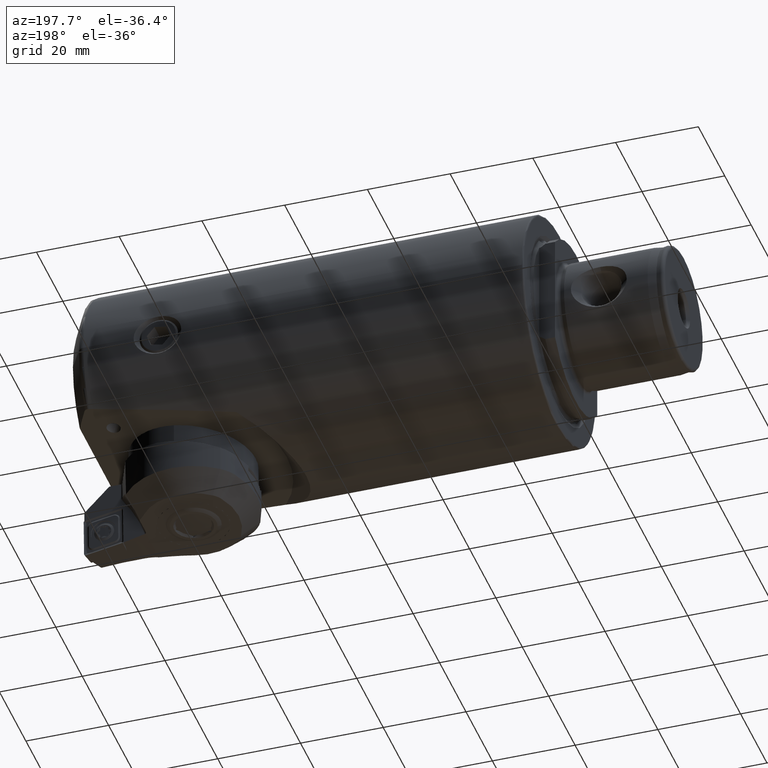
[diagram: clean part render]
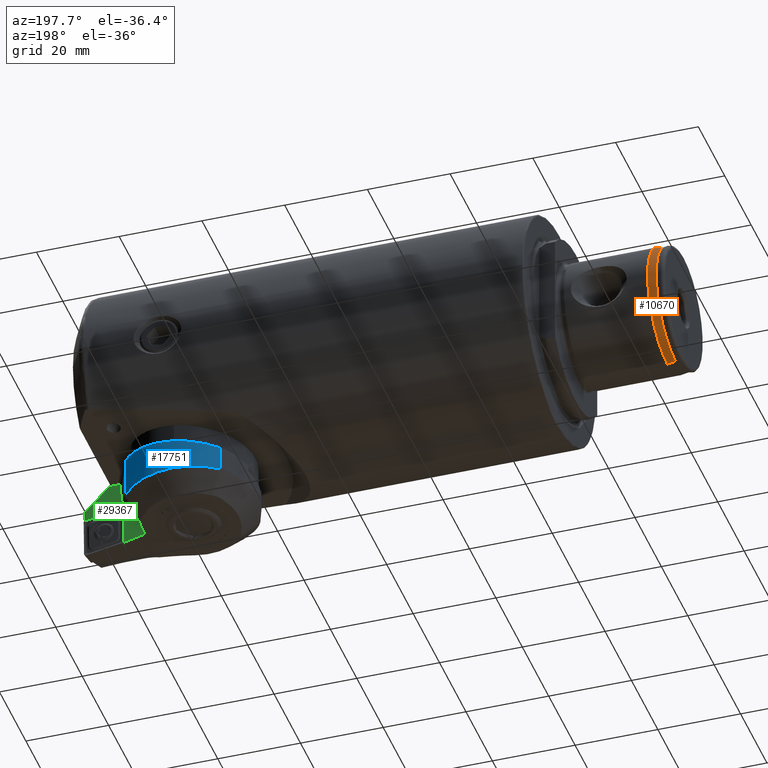
[diagram: same view with three faces highlighted in distinct colors, each labeled with its STEP entity id]
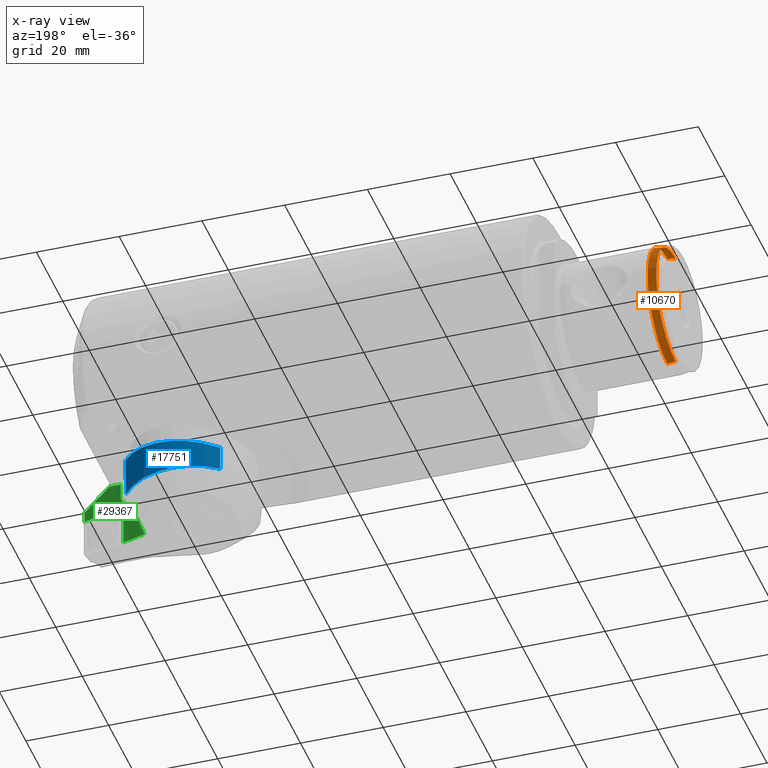
[diagram: x-ray of the same camera — body ghosted, the three highlighted faces saturated]
A machine part, auxiliary view with three faces highlighted in distinct colors.
The next image is the same camera in x-ray (body ghosted, the three faces saturated) — at least one of them is partly hidden behind the body in this view.
Their STEP definitions:

[orange] entity #10670 — the highlighted conical surface has half-angle 8 deg.
#79 = VERTEX_POINT ( 'NONE', #35533 ) ;
#703 = CARTESIAN_POINT ( 'NONE',  ( -25.99999999999999600, 0.0000000000000000000, 0.0000000000000000000 ) ) ;
#3712 = DIRECTION ( 'NONE',  ( 0.0000000000000000000, 0.0000000000000000000, 1.000000000000000000 ) ) ;
#4189 = EDGE_LOOP ( 'NONE', ( #38012, #33722, #29111, #12878 ) ) ;
#6235 = CARTESIAN_POINT ( 'NONE',  ( -27.99460346455847000, 1.802640503374977600E-015, -14.71967676419067000 ) ) ;
#6354 = CIRCLE ( 'NONE', #38932, 14.71967676419067000 ) ;
#6772 = VECTOR ( 'NONE', #36756, 1000.000000000000000 ) ;
#7976 = CARTESIAN_POINT ( 'NONE',  ( -25.99999999999999600, 1.836970198721029600E-015, 14.99999999999999800 ) ) ;
#8649 = LINE ( 'NONE', #18745, #6772 ) ;
#9015 = EDGE_CURVE ( 'NONE', #38226, #25006, #6354, .T. ) ;
#9034 = LINE ( 'NONE', #7976, #32050 ) ;
#10670 = ADVANCED_FACE ( 'NONE', ( #33992 ), #33028, .T. ) ;
#11713 = DIRECTION ( 'NONE',  ( 1.000000000000000000, 0.0000000000000000000, 0.0000000000000000000 ) ) ;
#12878 = ORIENTED_EDGE ( 'NONE', *, *, #18331, .F. ) ;
#14290 = CARTESIAN_POINT ( 'NONE',  ( -27.99460346455847000, 0.0000000000000000000, 14.71967676419067000 ) ) ;
#14888 = AXIS2_PLACEMENT_3D ( 'NONE', #703, #21668, #3712 ) ;
#14908 = DIRECTION ( 'NONE',  ( -1.000000000000000000, -0.0000000000000000000, -0.0000000000000000000 ) ) ;
#17068 = CIRCLE ( 'NONE', #14888, 14.99999999999999800 ) ;
#18331 = EDGE_CURVE ( 'NONE', #25006, #79, #8649, .T. ) ;
#18745 = CARTESIAN_POINT ( 'NONE',  ( -25.99999999999999600, 0.0000000000000000000, -14.99999999999999800 ) ) ;
#21553 = EDGE_CURVE ( 'NONE', #38226, #28501, #9034, .T. ) ;
#21668 = DIRECTION ( 'NONE',  ( -1.000000000000000000, -0.0000000000000000000, -0.0000000000000000000 ) ) ;
#22334 = AXIS2_PLACEMENT_3D ( 'NONE', #32713, #11713, #38668 ) ;
#25006 = VERTEX_POINT ( 'NONE', #6235 ) ;
#28501 = VERTEX_POINT ( 'NONE', #33452 ) ;
#29111 = ORIENTED_EDGE ( 'NONE', *, *, #32621, .T. ) ;
#32050 = VECTOR ( 'NONE', #38077, 1000.000000000000000 ) ;
#32621 = EDGE_CURVE ( 'NONE', #28501, #79, #17068, .T. ) ;
#32713 = CARTESIAN_POINT ( 'NONE',  ( -25.99999999999999600, 0.0000000000000000000, 0.0000000000000000000 ) ) ;
#32878 = CARTESIAN_POINT ( 'NONE',  ( -27.99460346455847000, 0.0000000000000000000, 0.0000000000000000000 ) ) ;
#33028 = CONICAL_SURFACE ( 'NONE', #22334, 14.99999999999999800, 0.1396263401595453600 ) ;
#33452 = CARTESIAN_POINT ( 'NONE',  ( -25.99999999999999600, 1.836970198721029600E-015, 14.99999999999999800 ) ) ;
#33722 = ORIENTED_EDGE ( 'NONE', *, *, #21553, .T. ) ;
#33992 = FACE_OUTER_BOUND ( 'NONE', #4189, .T. ) ;
#35533 = CARTESIAN_POINT ( 'NONE',  ( -25.99999999999999600, 0.0000000000000000000, -14.99999999999999800 ) ) ;
#35894 = DIRECTION ( 'NONE',  ( 0.0000000000000000000, 0.0000000000000000000, 1.000000000000000000 ) ) ;
#36756 = DIRECTION ( 'NONE',  ( 0.9902680687415704700, 0.0000000000000000000, -0.1391731009600644900 ) ) ;
#38012 = ORIENTED_EDGE ( 'NONE', *, *, #9015, .F. ) ;
#38077 = DIRECTION ( 'NONE',  ( 0.9902680687415704700, 1.704378926181544300E-017, 0.1391731009600644900 ) ) ;
#38226 = VERTEX_POINT ( 'NONE', #14290 ) ;
#38668 = DIRECTION ( 'NONE',  ( 0.0000000000000000000, 0.0000000000000000000, -1.000000000000000000 ) ) ;
#38932 = AXIS2_PLACEMENT_3D ( 'NONE', #32878, #14908, #35894 ) ;

[blue] entity #17751 — the highlighted cylindrical surface (partial cylindrical patch) has radius 16.55 mm, axis along (0, -0, 1).
#211 = EDGE_CURVE ( 'NONE', #36572, #23000, #31030, .T. ) ;
#745 = VERTEX_POINT ( 'NONE', #20362 ) ;
#1736 = EDGE_CURVE ( 'NONE', #13468, #23000, #11033, .T. ) ;
#3558 = CARTESIAN_POINT ( 'NONE',  ( 0.5601897321018435300, -10.48760062456626800, 12.80284082302039500 ) ) ;
#6127 = CARTESIAN_POINT ( 'NONE',  ( -5.500000000000005300, 13.16909711877788100, 10.02384063501591500 ) ) ;
#8241 = VECTOR ( 'NONE', #26943, 1000.000000000000000 ) ;
#11030 = CYLINDRICAL_SURFACE ( 'NONE', #14482, 16.55000000000000800 ) ;
#11033 = CIRCLE ( 'NONE', #34454, 16.55000000000000800 ) ;
#13468 = VERTEX_POINT ( 'NONE', #23189 ) ;
#14482 = AXIS2_PLACEMENT_3D ( 'NONE', #32825, #23886, #38901 ) ;
#14600 = ORIENTED_EDGE ( 'NONE', *, *, #211, .T. ) ;
#15623 = CARTESIAN_POINT ( 'NONE',  ( 4.354940207699606000, 13.47151093855360100, 9.613578575766222700 ) ) ;
#15951 = ORIENTED_EDGE ( 'NONE', *, *, #34420, .T. ) ;
#17127 = EDGE_CURVE ( 'NONE', #13468, #745, #24167, .T. ) ;
#17529 = CARTESIAN_POINT ( 'NONE',  ( -5.500000000000001800, 6.925341376751159600E-015, 0.0000000000000000000 ) ) ;
#17751 = ADVANCED_FACE ( 'NONE', ( #34993 ), #11030, .T. ) ;
#18026 = CARTESIAN_POINT ( 'NONE',  ( -13.00000000000000500, -10.48760062456626600, 12.80284082302039500 ) ) ;
#20362 = CARTESIAN_POINT ( 'NONE',  ( 0.5601897321018435300, -10.48760062456626800, 12.80284082302039500 ) ) ;
#20538 = DIRECTION ( 'NONE',  ( 1.048171284578130600E-016, -1.000000000000000000, 5.863556876683341500E-020 ) ) ;
#23000 = VERTEX_POINT ( 'NONE', #26164 ) ;
#23189 = CARTESIAN_POINT ( 'NONE',  ( -5.500000000000001800, -10.48760062456626800, 12.80284082302039800 ) ) ;
#23886 = DIRECTION ( 'NONE',  ( 1.000000000000000000, 1.061165053108318500E-017, -6.938893903908937100E-018 ) ) ;
#24167 = LINE ( 'NONE', #18026, #8241 ) ;
#25139 = CARTESIAN_POINT ( 'NONE',  ( 4.354940207699606000, 13.47151093855360100, 9.613578575766222700 ) ) ;
#25281 = CARTESIAN_POINT ( 'NONE',  ( -2.020258785337123400, 13.27200365306364000, 9.888644337158590100 ) ) ;
#26164 = CARTESIAN_POINT ( 'NONE',  ( -5.500000000000005300, 13.16909711877788100, 10.02384063501591500 ) ) ;
#26257 = EDGE_LOOP ( 'NONE', ( #15951, #14600, #27421, #26520 ) ) ;
#26520 = ORIENTED_EDGE ( 'NONE', *, *, #17127, .T. ) ;
#26943 = DIRECTION ( 'NONE',  ( 1.000000000000000000, 1.061165053108318500E-017, -6.938893903908937100E-018 ) ) ;
#27421 = ORIENTED_EDGE ( 'NONE', *, *, #1736, .F. ) ;
#27550 = CARTESIAN_POINT ( 'NONE',  ( 1.811643625694936400, -2.586231708346604200, 19.27534194415238000 ) ) ;
#28759 = CARTESIAN_POINT ( 'NONE',  ( 1.264980942679530400, 13.37281622767999200, 9.751879507789865900 ) ) ;
#31030 =( BOUNDED_CURVE ( )  B_SPLINE_CURVE ( 3, ( #25139, #28759, #25281, #6127 ),
 .UNSPECIFIED., .F., .F. ) 
 B_SPLINE_CURVE_WITH_KNOTS ( ( 4, 4 ),
 ( 0.2385590659942009600, 0.2693563834518322200 ),
 .UNSPECIFIED. ) 
 CURVE ( )  GEOMETRIC_REPRESENTATION_ITEM ( )  RATIONAL_B_SPLINE_CURVE ( ( 1.000000000000000000, 0.9999209619982518700, 0.9999209619982518700, 1.000000000000000000 ) ) 
 REPRESENTATION_ITEM ( '' )  );
#32825 = CARTESIAN_POINT ( 'NONE',  ( -13.00000000000000500, 6.925341376751159600E-015, 0.0000000000000000000 ) ) ;
#32943 = CARTESIAN_POINT ( 'NONE',  ( 4.354940207699606000, 13.47151093855360100, 9.613578575766222700 ) ) ;
#33590 = CARTESIAN_POINT ( 'NONE',  ( 3.415230770839784700, 7.538419058225562400, 17.92762225215154400 ) ) ;
#34420 = EDGE_CURVE ( 'NONE', #745, #36572, #35121, .T. ) ;
#34454 = AXIS2_PLACEMENT_3D ( 'NONE', #17529, #38568, #20538 ) ;
#34993 = FACE_OUTER_BOUND ( 'NONE', #26257, .T. ) ;
#35121 =( BOUNDED_CURVE ( )  B_SPLINE_CURVE ( 3, ( #3558, #27550, #33590, #15623 ),
 .UNSPECIFIED., .F., .T. ) 
 B_SPLINE_CURVE_WITH_KNOTS ( ( 4, 4 ),
 ( 4.026072616107711600, 5.663374855616608800 ),
 .UNSPECIFIED. ) 
 CURVE ( )  GEOMETRIC_REPRESENTATION_ITEM ( )  RATIONAL_B_SPLINE_CURVE ( ( 1.000000000000000000, 0.7888045430078420800, 0.7888045430078420800, 1.000000000000000000 ) ) 
 REPRESENTATION_ITEM ( '' )  );
#36572 = VERTEX_POINT ( 'NONE', #32943 ) ;
#38568 = DIRECTION ( 'NONE',  ( -1.000000000000000000, -1.216339529935987400E-016, 6.938893903908937100E-018 ) ) ;
#38901 = DIRECTION ( 'NONE',  ( 0.0000000000000000000, 4.063994401039269000E-020, -1.000000000000000000 ) ) ;

[green] entity #29367 — the highlighted planar face has unit normal (0, 0.9994, -0.0349).
#183 = AXIS2_PLACEMENT_3D ( 'NONE', #34299, #16317, #37333 ) ;
#233 = DIRECTION ( 'NONE',  ( -9.347175802752531200E-017, 1.000000000000000000, -3.510086895963994300E-018 ) ) ;
#237 = ORIENTED_EDGE ( 'NONE', *, *, #31556, .T. ) ;
#475 = AXIS2_PLACEMENT_3D ( 'NONE', #7935, #28943, #10935 ) ;
#661 = DIRECTION ( 'NONE',  ( 0.1564321309092691600, 0.9876736034722860500, 0.005462730384585503900 ) ) ;
#1220 = EDGE_CURVE ( 'NONE', #8126, #33737, #22336, .T. ) ;
#1785 = DIRECTION ( 'NONE',  ( 0.9993908270190957600, 0.0000000000000000000, 0.03489949670250104600 ) ) ;
#2496 = CARTESIAN_POINT ( 'NONE',  ( -15.50248925008820900, 40.74346874586490900, -0.2857647206430837300 ) ) ;
#2575 = VERTEX_POINT ( 'NONE', #33099 ) ;
#3481 = CARTESIAN_POINT ( 'NONE',  ( -10.07750625857447300, 11.87936244503333300, -0.09632014009978182000 ) ) ;
#3508 = LINE ( 'NONE', #20153, #18498 ) ;
#4119 = LINE ( 'NONE', #35639, #34163 ) ;
#5613 = DIRECTION ( 'NONE',  ( -0.1735423958889161200, 0.9848077530122073500, -0.006060234003882483200 ) ) ;
#5799 = VECTOR ( 'NONE', #23372, 1000.000000000000100 ) ;
#5833 = DIRECTION ( 'NONE',  ( 0.7040275243395478500, -0.7097470068654253600, 0.02458518289330721700 ) ) ;
#6318 = ORIENTED_EDGE ( 'NONE', *, *, #25672, .F. ) ;
#6525 = CARTESIAN_POINT ( 'NONE',  ( 4.985489630318629600, 17.45264331069247300, 0.4296912671914038300 ) ) ;
#6621 = VECTOR ( 'NONE', #12124, 1000.000000000000200 ) ;
#6946 = ORIENTED_EDGE ( 'NONE', *, *, #1220, .T. ) ;
#6983 = VERTEX_POINT ( 'NONE', #25158 ) ;
#7678 = LINE ( 'NONE', #38389, #5799 ) ;
#7756 = ORIENTED_EDGE ( 'NONE', *, *, #16960, .T. ) ;
#7789 = ORIENTED_EDGE ( 'NONE', *, *, #15803, .F. ) ;
#7935 = CARTESIAN_POINT ( 'NONE',  ( -17.91552828906671400, 40.31772550651196200, -0.3700299006978407500 ) ) ;
#8126 = VERTEX_POINT ( 'NONE', #12887 ) ;
#8247 = CARTESIAN_POINT ( 'NONE',  ( 5.000000000000004400, 17.54425817924673200, 0.4301979804662845500 ) ) ;
#8421 = CARTESIAN_POINT ( 'NONE',  ( -2.236780496493180800, 19.45328949729511700, 0.1774840368858694700 ) ) ;
#8999 = DIRECTION ( 'NONE',  ( -0.03489949670250106600, -1.380443721983698000E-019, 0.9993908270190957600 ) ) ;
#9561 = CIRCLE ( 'NONE', #20285, 1.649999999999999200 ) ;
#9755 = CIRCLE ( 'NONE', #183, 1.649999999999999200 ) ;
#10111 = VERTEX_POINT ( 'NONE', #25362 ) ;
#10935 = DIRECTION ( 'NONE',  ( 0.9993908270190956500, 1.681259804252280800E-029, 0.03489949670250103900 ) ) ;
#11049 = EDGE_CURVE ( 'NONE', #38738, #20623, #38629, .T. ) ;
#12124 = DIRECTION ( 'NONE',  ( 0.9993908270190956500, 1.678794613923465500E-029, 0.03489949670250103900 ) ) ;
#12887 = CARTESIAN_POINT ( 'NONE',  ( -11.31607859279194800, 16.98668210315153400, -0.1395720390818455400 ) ) ;
#13994 = CIRCLE ( 'NONE', #16274, 29.50000000000000700 ) ;
#14370 = VECTOR ( 'NONE', #18059, 1000.000000000000000 ) ;
#14877 = ORIENTED_EDGE ( 'NONE', *, *, #11049, .T. ) ;
#15112 = VERTEX_POINT ( 'NONE', #8247 ) ;
#15159 = CARTESIAN_POINT ( 'NONE',  ( -17.91552828906670700, 26.37469210527352800, -0.3700299006978406400 ) ) ;
#15177 = CARTESIAN_POINT ( 'NONE',  ( 5.000000000000004400, 17.54425817924673200, 0.4301979804662845500 ) ) ;
#15803 = EDGE_CURVE ( 'NONE', #30113, #37457, #4119, .T. ) ;
#16274 = AXIS2_PLACEMENT_3D ( 'NONE', #37744, #19723, #1785 ) ;
#16313 = CARTESIAN_POINT ( 'NONE',  ( 4.999999999999993800, 20.27520936516700800, 0.4301979804662836600 ) ) ;
#16317 = DIRECTION ( 'NONE',  ( -0.03489949670250106600, -1.380443721983698000E-019, 0.9993908270190957600 ) ) ;
#16960 = EDGE_CURVE ( 'NONE', #6983, #15112, #21870, .T. ) ;
#18059 = DIRECTION ( 'NONE',  ( 0.2356700843286294600, -0.9717982723087728000, 0.008229780690940836600 ) ) ;
#18332 = CARTESIAN_POINT ( 'NONE',  ( -20.03124008432848800, 52.92411940875820200, -0.4439121846111503400 ) ) ;
#18365 = DIRECTION ( 'NONE',  ( 0.1735423958889161000, -0.9848077530122073500, 0.006060234003882481400 ) ) ;
#18404 = CARTESIAN_POINT ( 'NONE',  ( -1.312787551445941100, 17.97132079501413300, 0.2097505815318652400 ) ) ;
#18498 = VECTOR ( 'NONE', #23144, 1000.000000000000100 ) ;
#18774 = EDGE_CURVE ( 'NONE', #25544, #20623, #9561, .T. ) ;
#19723 = DIRECTION ( 'NONE',  ( -0.03489949670250105900, -1.125888084427195100E-019, 0.9993908270190957600 ) ) ;
#20153 = CARTESIAN_POINT ( 'NONE',  ( 4.913797972887961900, 17.49999999999999600, 0.4271877393477829800 ) ) ;
#20285 = AXIS2_PLACEMENT_3D ( 'NONE', #26948, #8999, #30005 ) ;
#20514 = CARTESIAN_POINT ( 'NONE',  ( -3.456467067629951400, 26.37469210527354200, 0.1348916432830215300 ) ) ;
#20613 = EDGE_CURVE ( 'NONE', #22664, #10111, #7678, .T. ) ;
#20623 = VERTEX_POINT ( 'NONE', #8421 ) ;
#20967 = VECTOR ( 'NONE', #233, 1000.000000000000000 ) ;
#21725 = CARTESIAN_POINT ( 'NONE',  ( -4.294452361516279700, 16.99955691218056200, 0.1056285519977432800 ) ) ;
#21870 = LINE ( 'NONE', #6525, #36936 ) ;
#22336 = LINE ( 'NONE', #18332, #14370 ) ;
#22363 = ORIENTED_EDGE ( 'NONE', *, *, #22624, .F. ) ;
#22624 = EDGE_CURVE ( 'NONE', #38738, #30113, #38607, .T. ) ;
#22664 = VERTEX_POINT ( 'NONE', #21725 ) ;
#23144 = DIRECTION ( 'NONE',  ( 0.9993908270190956500, 5.273559366969659200E-016, 0.03489949670250104600 ) ) ;
#23243 = ORIENTED_EDGE ( 'NONE', *, *, #27398, .T. ) ;
#23372 = DIRECTION ( 'NONE',  ( -0.9993908270190956500, -3.608224830031925400E-016, -0.03489949670250104600 ) ) ;
#24604 = FACE_OUTER_BOUND ( 'NONE', #36241, .T. ) ;
#25158 = CARTESIAN_POINT ( 'NONE',  ( 4.992990193050224500, 17.49999999999999600, 0.4299531926136122000 ) ) ;
#25362 = CARTESIAN_POINT ( 'NONE',  ( -11.31834738606524100, 16.99955691218056600, -0.1396512670887649100 ) ) ;
#25544 = VERTEX_POINT ( 'NONE', #18404 ) ;
#25672 = EDGE_CURVE ( 'NONE', #22664, #25544, #9755, .T. ) ;
#25814 = EDGE_CURVE ( 'NONE', #33737, #2575, #13994, .T. ) ;
#26948 = CARTESIAN_POINT ( 'NONE',  ( -2.961782416027448400, 17.97132079501413300, 0.1521664119727385000 ) ) ;
#27398 = EDGE_CURVE ( 'NONE', #15112, #37457, #37946, .T. ) ;
#28943 = DIRECTION ( 'NONE',  ( -0.03489949670250104600, -1.125888084427195100E-019, 0.9993908270190957600 ) ) ;
#29367 = ADVANCED_FACE ( 'NONE', ( #24604 ), #37893, .T. ) ;
#29501 = VECTOR ( 'NONE', #5613, 1000.000000000000100 ) ;
#29610 = CARTESIAN_POINT ( 'NONE',  ( -1.050330176430358500, 26.37469210527352800, 0.2189157950261953500 ) ) ;
#29844 = ORIENTED_EDGE ( 'NONE', *, *, #20613, .T. ) ;
#30005 = DIRECTION ( 'NONE',  ( 0.9993908270190956500, 0.0000000000000000000, 0.03489949670250105200 ) ) ;
#30113 = VERTEX_POINT ( 'NONE', #29610 ) ;
#30401 = ORIENTED_EDGE ( 'NONE', *, *, #37156, .F. ) ;
#30617 = VECTOR ( 'NONE', #18365, 1000.000000000000200 ) ;
#31450 = ORIENTED_EDGE ( 'NONE', *, *, #18774, .F. ) ;
#31556 = EDGE_CURVE ( 'NONE', #2575, #6983, #3508, .T. ) ;
#32661 = CARTESIAN_POINT ( 'NONE',  ( -1.799305947602355200, 16.97073573695070400, 0.1927609847661921300 ) ) ;
#33099 = CARTESIAN_POINT ( 'NONE',  ( 0.7707125577817164300, 17.50000000000000000, 0.2825080085822355100 ) ) ;
#33737 = VERTEX_POINT ( 'NONE', #3481 ) ;
#34163 = VECTOR ( 'NONE', #5833, 1000.000000000000100 ) ;
#34299 = CARTESIAN_POINT ( 'NONE',  ( -2.961782416027448400, 17.97132079501413300, 0.1521664119727385000 ) ) ;
#35639 = CARTESIAN_POINT ( 'NONE',  ( -16.38691451036367000, 41.83587004254200500, -0.3166495312898423000 ) ) ;
#36241 = EDGE_LOOP ( 'NONE', ( #6318, #29844, #30401, #6946, #38750, #237, #7756, #23243, #7789, #22363, #14877, #31450 ) ) ;
#36936 = VECTOR ( 'NONE', #661, 1000.000000000000100 ) ;
#37156 = EDGE_CURVE ( 'NONE', #8126, #10111, #37506, .T. ) ;
#37333 = DIRECTION ( 'NONE',  ( 0.9993908270190956500, 0.0000000000000000000, 0.03489949670250105200 ) ) ;
#37457 = VERTEX_POINT ( 'NONE', #16313 ) ;
#37506 = LINE ( 'NONE', #2496, #29501 ) ;
#37744 = CARTESIAN_POINT ( 'NONE',  ( -17.91552828906671400, 40.31772550651196200, -0.3700299006978409700 ) ) ;
#37893 = PLANE ( 'NONE',  #475 ) ;
#37946 = LINE ( 'NONE', #15177, #20967 ) ;
#38389 = CARTESIAN_POINT ( 'NONE',  ( -11.44118343685510200, 16.99955691218056600, -0.1439407965036748100 ) ) ;
#38607 = LINE ( 'NONE', #15159, #6621 ) ;
#38629 = LINE ( 'NONE', #32661, #30617 ) ;
#38738 = VERTEX_POINT ( 'NONE', #20514 ) ;
#38750 = ORIENTED_EDGE ( 'NONE', *, *, #25814, .T. ) ;